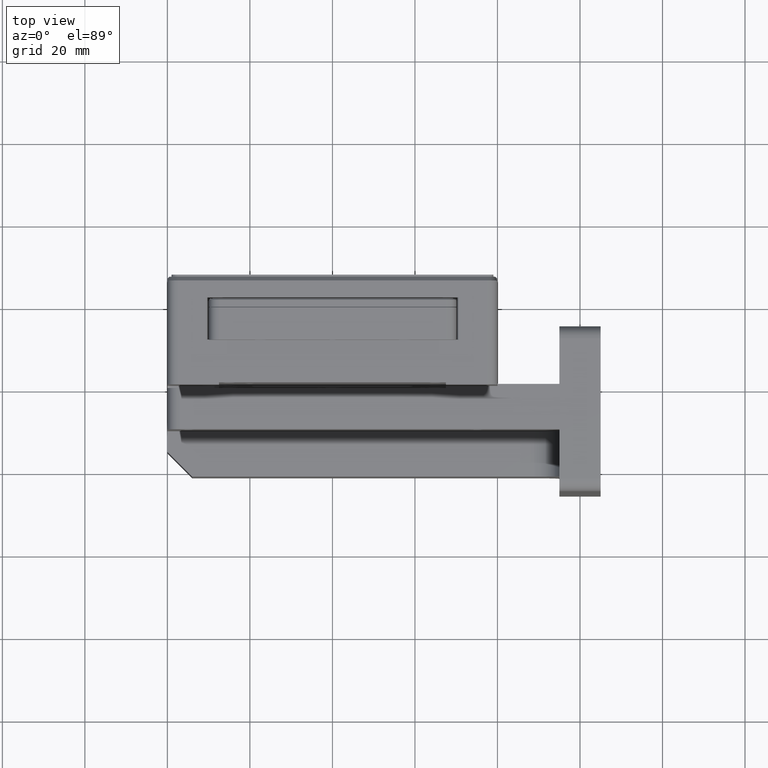
[diagram: clean part render]
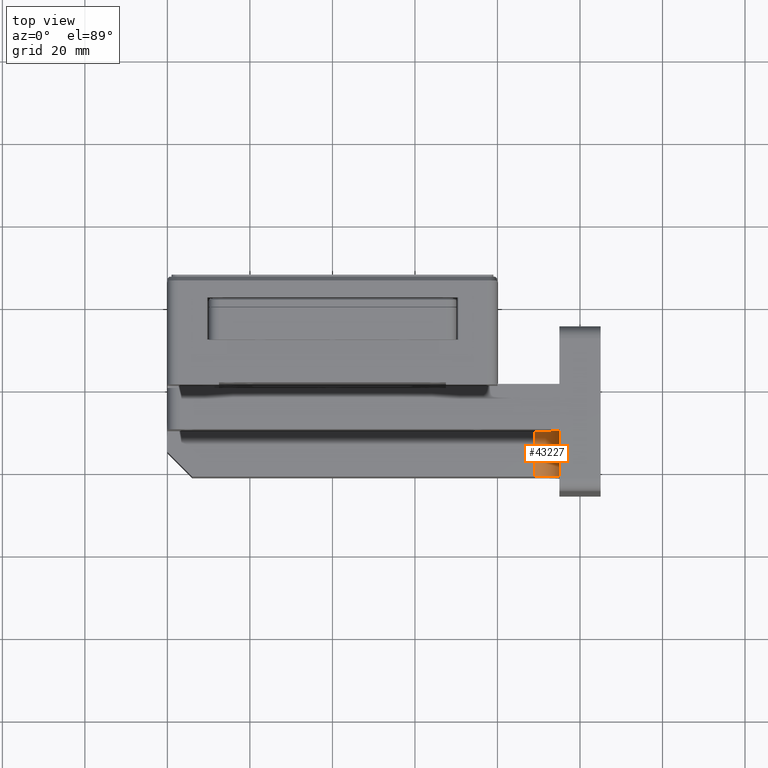
[diagram: same view with one face highlighted and labeled with its STEP entity id]
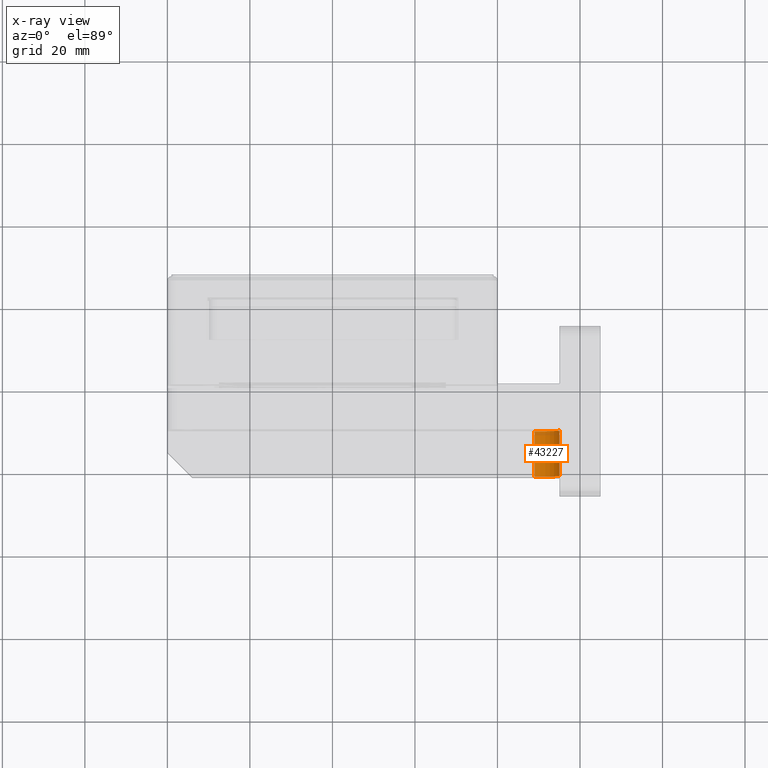
[diagram: x-ray of the same camera — body ghosted, the highlighted face saturated]
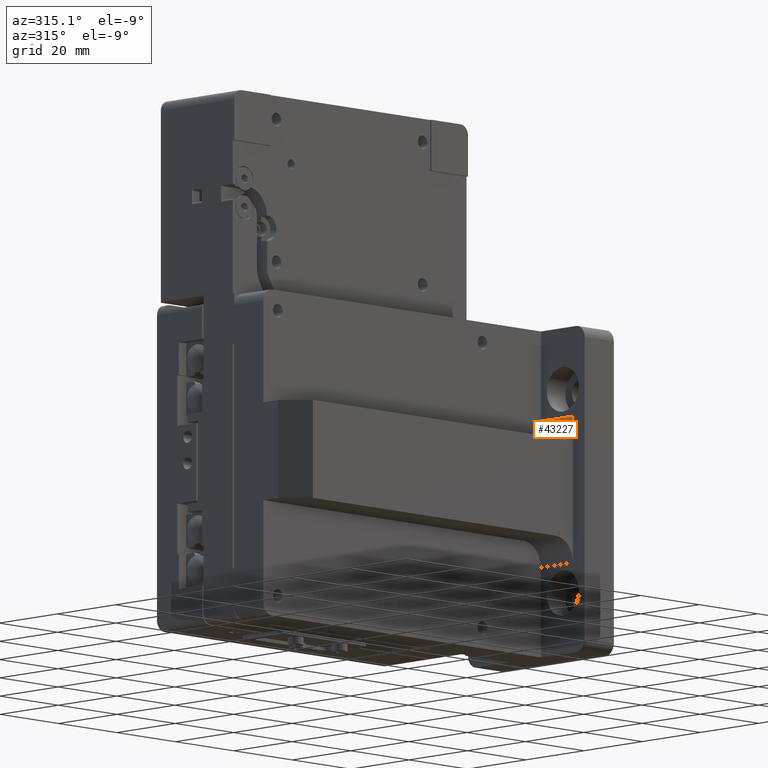
[diagram: same view with one face highlighted and labeled with its STEP entity id]
A machine part, top view. The second image highlights one B-rep face of the part: STEP entity #43227.
The next image is the same camera in x-ray: the body ghosted, the highlighted face saturated — about 0% of this face is hidden behind the body in this view.
A second angle (auxiliary view) of the same face is appended — the face is thin or edge-on in the first view.
In plain terms, the highlighted cylindrical surface (edge-blend (fillet) strip) has radius 6 mm, axis along (0, -1, -0).
Its self-contained STEP definition (entity closure, byte-faithful):
#2072 = DIRECTION ( 'NONE',  ( 2.312964634635740985E-16, -1.000000000000000000, 0.000000000000000000 ) ) ;
#2358 = AXIS2_PLACEMENT_3D ( 'NONE', #37258, #56741, #32773 ) ;
#3153 = VERTEX_POINT ( 'NONE', #50376 ) ;
#5395 = DIRECTION ( 'NONE',  ( 1.000000000000000000, 2.312964634635740985E-16, 0.000000000000000000 ) ) ;
#6300 = AXIS2_PLACEMENT_3D ( 'NONE', #44913, #54157, #34995 ) ;
#7014 = LINE ( 'NONE', #8265, #33254 ) ;
#8265 = CARTESIAN_POINT ( 'NONE',  ( 0.000000000000000000, 16.00000000000004263, 12.00000000000000000 ) ) ;
#9426 = CARTESIAN_POINT ( 'NONE',  ( -16.00000000000000000, 10.00000000000000888, 18.00000000000000711 ) ) ;
#10472 = LINE ( 'NONE', #58333, #19816 ) ;
#10847 = EDGE_LOOP ( 'NONE', ( #18869, #28678, #33396, #56121 ) ) ;
#10997 = VERTEX_POINT ( 'NONE', #24042 ) ;
#14297 = VERTEX_POINT ( 'NONE', #29682 ) ;
#16474 = EDGE_CURVE ( 'NONE', #61046, #14297, #52118, .T. ) ;
#17351 = FACE_OUTER_BOUND ( 'NONE', #10847, .T. ) ;
#18869 = ORIENTED_EDGE ( 'NONE', *, *, #51253, .T. ) ;
#19816 = VECTOR ( 'NONE', #5395, 1000.000000000000000 ) ;
#20686 = CIRCLE ( 'NONE', #2358, 6.000000000000000000 ) ;
#20876 = CARTESIAN_POINT ( 'NONE',  ( -3.700743415417189520E-15, 16.00000000000001066, 18.00000000000000711 ) ) ;
#22891 = EDGE_CURVE ( 'NONE', #10997, #3153, #20686, .T. ) ;
#24042 = CARTESIAN_POINT ( 'NONE',  ( -4.999999999999990230, 10.00000000000000888, 18.00000000000000711 ) ) ;
#28678 = ORIENTED_EDGE ( 'NONE', *, *, #22891, .T. ) ;
#29682 = CARTESIAN_POINT ( 'NONE',  ( -16.00000000000000000, 16.00000000000002487, 12.00000000000000000 ) ) ;
#32773 = DIRECTION ( 'NONE',  ( 2.891205793294678326E-16, -1.000000000000000000, 0.000000000000000000 ) ) ;
#33254 = VECTOR ( 'NONE', #40806, 1000.000000000000000 ) ;
#33396 = ORIENTED_EDGE ( 'NONE', *, *, #42553, .T. ) ;
#34995 = DIRECTION ( 'NONE',  ( 0.000000000000000000, -1.000000000000000000, 0.000000000000000000 ) ) ;
#35529 = DIRECTION ( 'NONE',  ( -1.000000000000000000, -2.312964634635740985E-16, 0.000000000000000000 ) ) ;
#36146 = CYLINDRICAL_SURFACE ( 'NONE', #55629, 6.000000000000000000 ) ;
#37258 = CARTESIAN_POINT ( 'NONE',  ( -4.999999999999991118, 16.00000000000001066, 18.00000000000000711 ) ) ;
#40806 = DIRECTION ( 'NONE',  ( -1.000000000000000000, 0.000000000000000000, -0.000000000000000000 ) ) ;
#42553 = EDGE_CURVE ( 'NONE', #3153, #14297, #7014, .T. ) ;
#43227 = ADVANCED_FACE ( 'NONE', ( #17351 ), #36146, .F. ) ;
#44913 = CARTESIAN_POINT ( 'NONE',  ( -16.00000000000000000, 16.00000000000000711, 18.00000000000000711 ) ) ;
#50376 = CARTESIAN_POINT ( 'NONE',  ( -4.999999999999991118, 16.00000000000002842, 12.00000000000000000 ) ) ;
#51253 = EDGE_CURVE ( 'NONE', #61046, #10997, #10472, .T. ) ;
#52118 = CIRCLE ( 'NONE', #6300, 6.000000000000000000 ) ;
#54157 = DIRECTION ( 'NONE',  ( 1.000000000000000000, 2.312964634635740985E-16, -0.000000000000000000 ) ) ;
#55629 = AXIS2_PLACEMENT_3D ( 'NONE', #20876, #35529, #2072 ) ;
#56121 = ORIENTED_EDGE ( 'NONE', *, *, #16474, .F. ) ;
#56741 = DIRECTION ( 'NONE',  ( 1.000000000000000000, 2.312964634635740985E-16, -0.000000000000000000 ) ) ;
#58333 = CARTESIAN_POINT ( 'NONE',  ( -4.999999999999990230, 10.00000000000001066, 18.00000000000000711 ) ) ;
#61046 = VERTEX_POINT ( 'NONE', #9426 ) ;